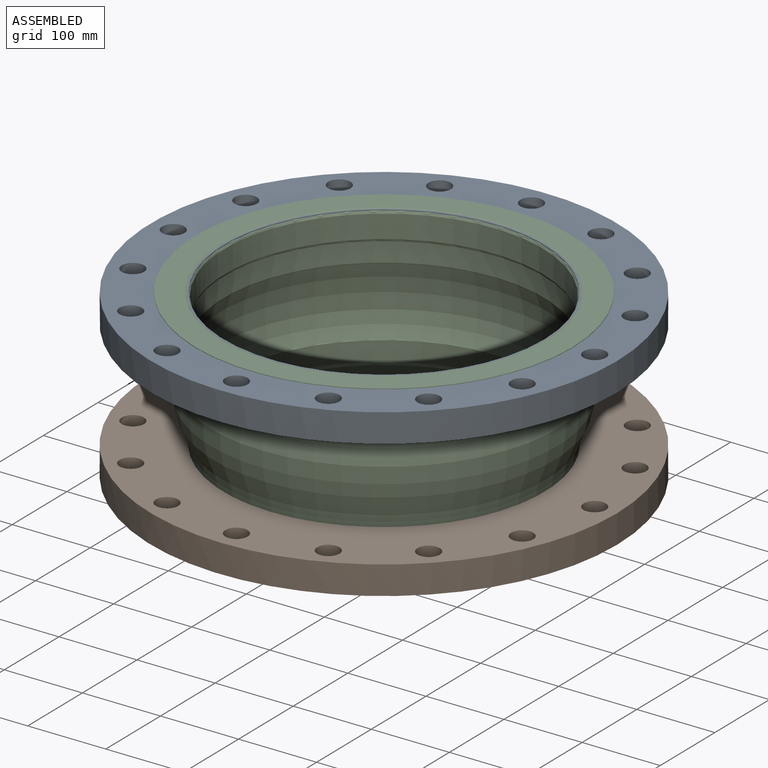
[diagram: assembled view]
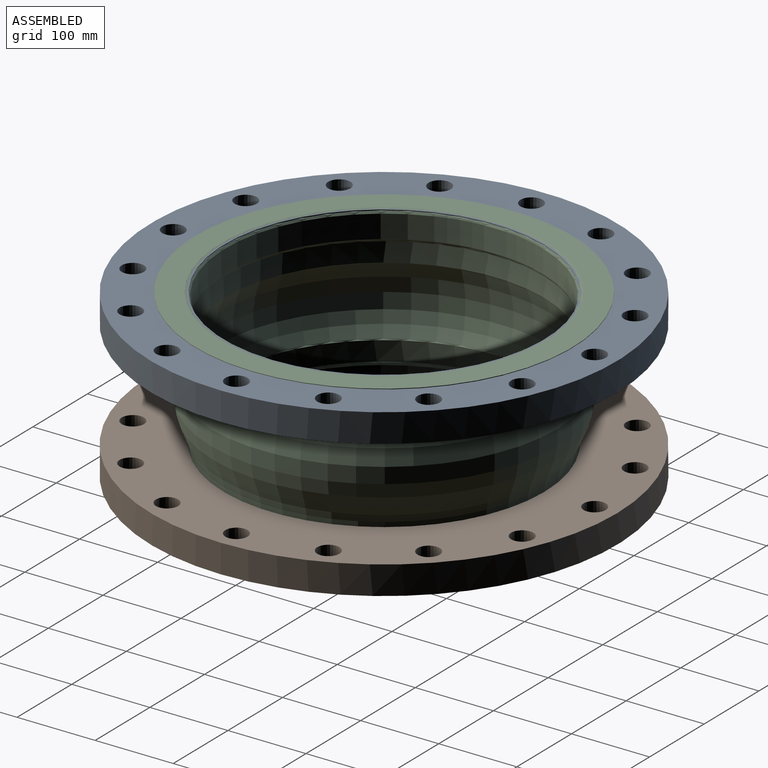
[diagram: assembled view, second angle]
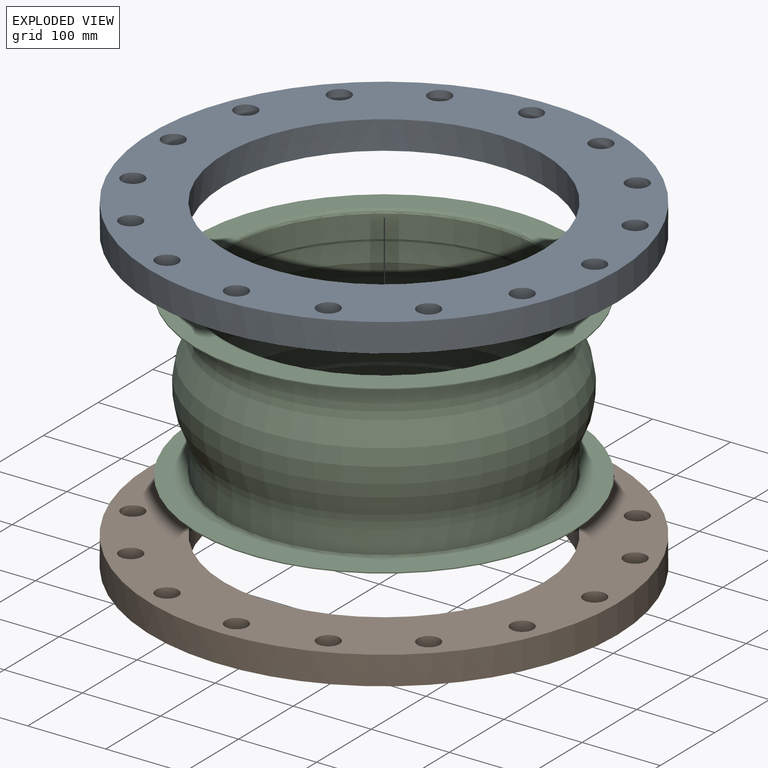
[diagram: exploded view]
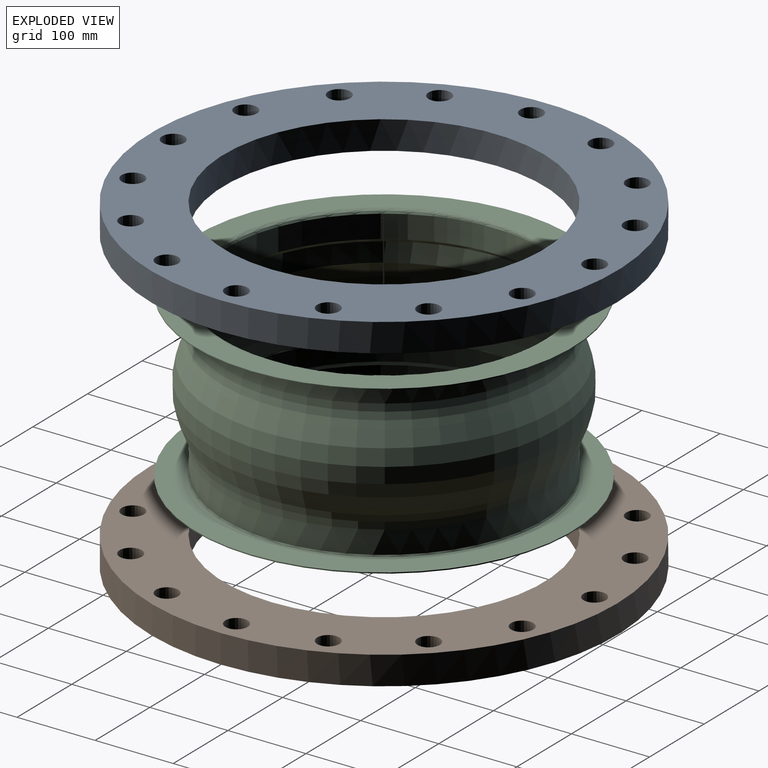
[diagram: exploded view, second angle]
ASSEMBLY  parts=3 mates=2
PART A: 20 faces, bbox 596.9x596.9x36.5 mm
  f0: cylinder r=14.29mm len=36.51mm, axis (0,0,1), area 3277.8mm2, adj f16,f17
  f1: cylinder r=14.29mm len=36.51mm, axis (0,0,1), area 3277.8mm2, adj f16,f17
  f2: cylinder r=14.29mm len=36.51mm, axis (0,0,1), area 3277.8mm2, adj f16,f17
  f3: cylinder r=14.29mm len=36.51mm, axis (0,0,1), area 3277.8mm2, adj f16,f17
  f4: cylinder r=14.29mm len=36.51mm, axis (0,0,1), area 3277.8mm2, adj f16,f17
  f5: cylinder r=14.29mm len=36.51mm, axis (0,0,1), area 3277.8mm2, adj f16,f17
  f6: cylinder r=14.29mm len=36.51mm, axis (0,0,1), area 3277.8mm2, adj f16,f17
  f7: cylinder r=14.29mm len=36.51mm, axis (0,0,1), area 3277.8mm2, adj f16,f17
  f8: cylinder r=14.29mm len=36.51mm, axis (0,0,1), area 3277.8mm2, adj f16,f17
  f9: cylinder r=14.29mm len=36.51mm, axis (0,0,1), area 3277.8mm2, adj f16,f17
  f10: cylinder r=14.29mm len=36.51mm, axis (0,0,1), area 3277.8mm2, adj f16,f17
  f11: cylinder r=14.29mm len=36.51mm, axis (0,0,1), area 3277.8mm2, adj f16,f17
  f12: cylinder r=14.29mm len=36.51mm, axis (0,0,1), area 3277.8mm2, adj f16,f17
  f13: cylinder r=14.29mm len=36.51mm, axis (0,0,1), area 3277.8mm2, adj f16,f17
  f14: cylinder r=14.29mm len=36.51mm, axis (0,0,1), area 3277.8mm2, adj f16,f17
  f15: cylinder r=298.45mm len=596.9mm, axis (0,0,1), area 68468.8mm2, adj f16,f17
  f16: plane 596.9x596.9mm, normal (0,0,-1), area 137244mm2, adj f0,f1,f2,f3,f4,f5,f6,f7
  f17: plane 596.9x596.9mm, normal (0,0,1), area 137244mm2, adj f0,f1,f2,f3,f4,f5,f6,f7
  f18: cylinder r=14.29mm len=36.51mm, axis (0,0,1), area 3277.8mm2, adj f16,f17
  f19: cylinder r=205.23mm len=410.46mm, axis (0,0,1), area 47083.3mm2, adj f16,f17
PART B: same geometry as A
PART C: 24 faces, bbox 482.9x859.9x229.1 mm
  f0: cylinder r=205.23mm len=410.46mm, axis (0,0,-1), area 31896.9mm2, adj f7,f10
  f1: cylinder r=205.23mm len=410.46mm, axis (0,0,-1), area 31896.9mm2, adj f12,f20
  f2: cylinder r=205.23mm len=410.46mm, axis (0,0,1), area 37955mm2, adj f3,f22
  f3: bspline ~853.46x426.73mm, area 7615.9mm2, adj f2,f9
  f4: cylinder r=241.45mm len=482.9mm, axis (0,0,1), area 2029.7mm2, adj f8,f9
  f5: bspline ~859.9x429.95mm, area 10571.4mm2, adj f6,f8
  f6: cylinder r=203.62mm len=407.24mm, axis (0,0,1), area 37657.3mm2, adj f5,f7
  f7: bspline ~859.9x429.95mm, area 4852.7mm2, adj f0,f6
  f8: plane 482.9x482.9mm, normal (0,0,-1), area 45527.7mm2, adj f4,f5
  f9: plane 482.9x482.9mm, normal (0,0,1), area 45527.7mm2, adj f3,f4
  f10: torus R=263.91mm, axis (0,0,-1), area 1906.8mm2, adj f0,f11
  f11: torus R=119.83mm, axis (0,0,-1), area 120753.7mm2, adj f10,f12
  f12: torus R=263.91mm, axis (0,0,-1), area 1906.8mm2, adj f1,f11
  f13: cylinder r=205.23mm len=410.46mm, axis (0,0,1), area 37955mm2, adj f14,f21
  f14: bspline ~853.46x426.73mm, area 7610.1mm2, adj f13,f15
  f15: plane 482.9x482.9mm, normal (0,0,-1), area 45527.7mm2, adj f14,f16
  f16: cylinder r=241.45mm len=482.9mm, axis (0,0,1), area 2029.7mm2, adj f15,f17
  f17: plane 482.9x482.9mm, normal (0,0,1), area 45527.7mm2, adj f16,f18
  f18: bspline ~859.9x429.95mm, area 10571.4mm2, adj f17,f19
  f19: cylinder r=203.62mm len=407.24mm, axis (0,0,1), area 37657.3mm2, adj f18,f20
  f20: bspline ~859.9x429.95mm, area 4849mm2, adj f1,f19
  f21: torus R=263.91mm, axis (0,0,-1), area 35801mm2, adj f13,f23
  f22: torus R=263.91mm, axis (0,0,-1), area 35801mm2, adj f2,f23
  f23: torus R=119.83mm, axis (0,0,-1), area 132407.3mm2, adj f21,f22
PLACE A rot(axis=(1,0,0),180deg) t=(-5.15,16.29,-88.42)mm
PLACE B rot(axis=(0,0.42,-0.91),0deg) t=(-5.15,16.29,-101.11)mm
PLACE C rot(axis=(0,0.42,-0.91),0deg) t=(-5.15,16.29,-41.21)mm
MATE fastened B.f15 <-> C.f4  axis (0,0,-1) through (-5.15,16.29,-201.12)mm
MATE fastened A.f15 <-> C.f4  axis (0,0,1) through (-5.15,16.29,11.6)mm
